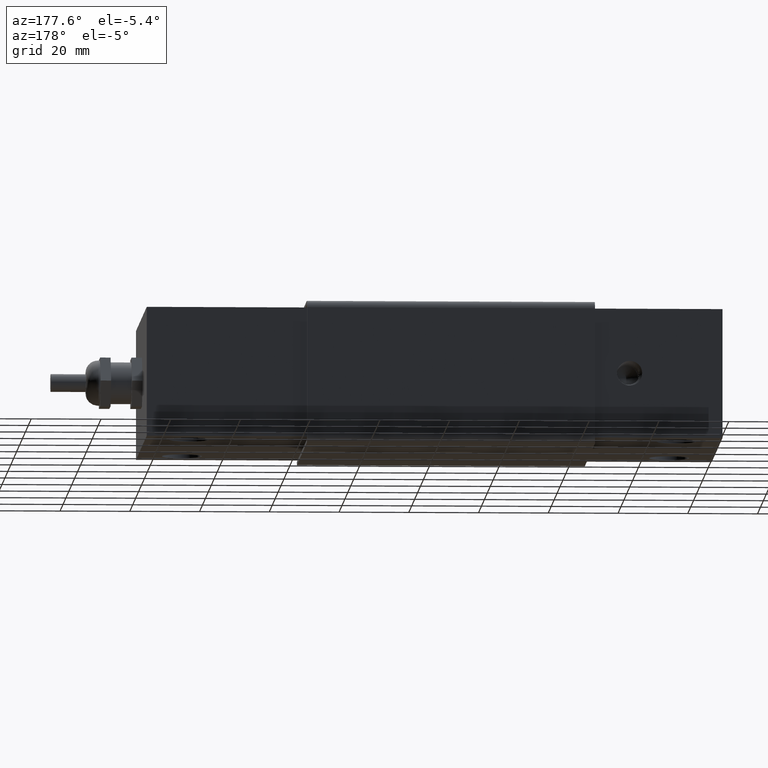
[diagram: clean part render]
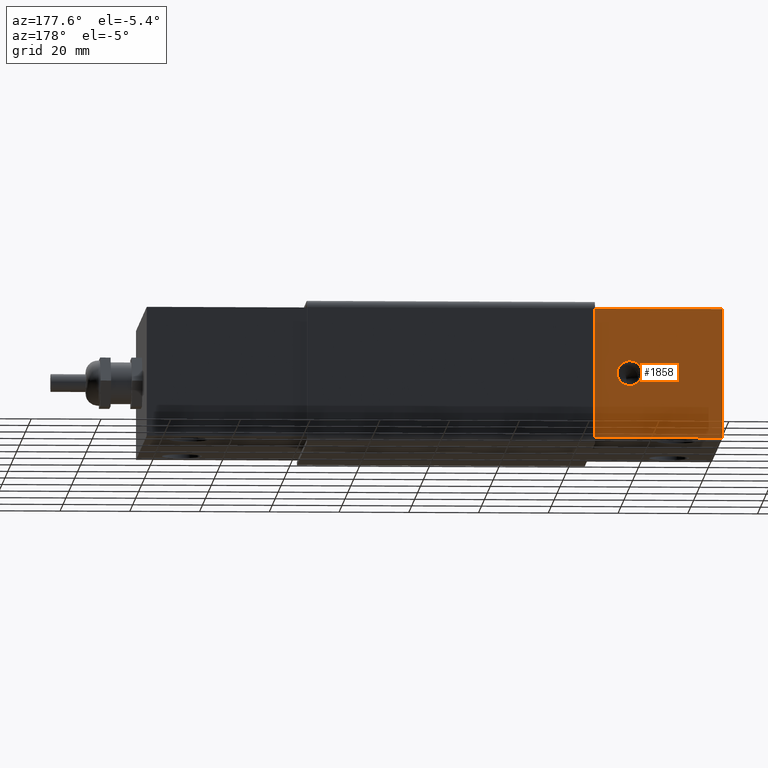
[diagram: same view with one face highlighted and labeled with its STEP entity id]
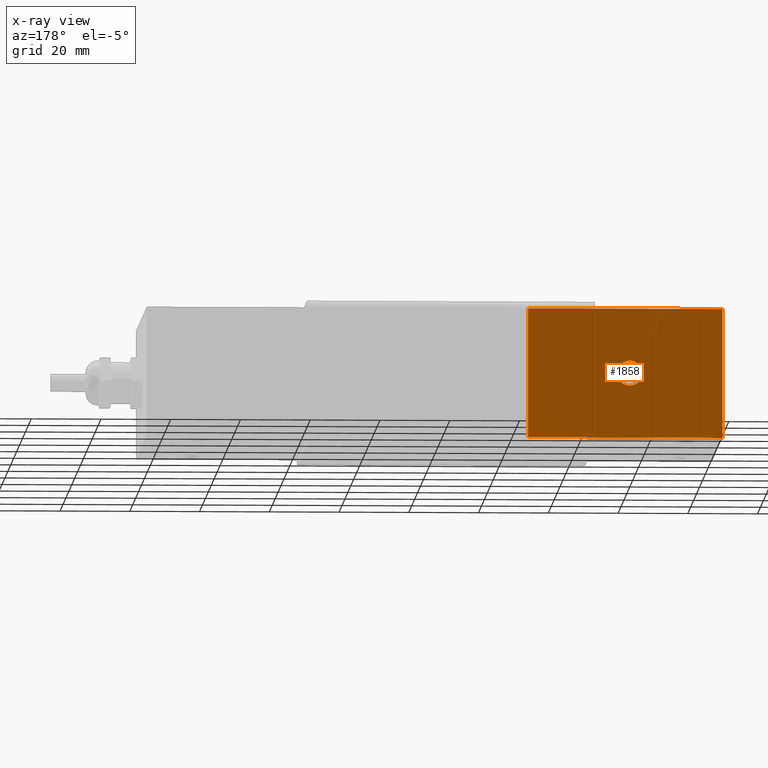
[diagram: x-ray of the same camera — body ghosted, the highlighted face saturated]
A machine part, auxiliary view. The second image highlights one B-rep face of the part: STEP entity #1858.
The next image is the same camera in x-ray: the body ghosted, the highlighted face saturated — about 0% of this face is hidden behind the body in this view.
In plain terms, the highlighted planar face has unit normal (0, 1, 0).
Its self-contained STEP definition (entity closure, byte-faithful):
#60=B_SPLINE_CURVE_WITH_KNOTS('',3,(#3767,#3768,#3769,#3770,#3771,#3772,
#3773,#3774,#3775,#3776,#3777,#3778,#3779,#3780,#3781,#3782,#3783,#3784,
#3785,#3786,#3787,#3788,#3789,#3790,#3791,#3792,#3793,#3794,#3795,#3796,
#3797,#3798,#3799,#3800,#3801,#3802,#3803,#3804,#3805,#3806,#3807,#3808,
#3809),.UNSPECIFIED.,.F.,.F.,(4,3,3,3,3,3,3,3,3,3,3,3,3,3,4),(0.,0.0707120839448921,
0.124668405679322,0.147984307307588,0.224369850239952,0.264820561062953,
0.289583147449735,0.348437743618254,0.406127728350922,0.432645910408985,
0.489508356296855,0.520531958636103,0.551406651569853,0.634424061736881,
0.643346502893822),.UNSPECIFIED.);
#63=B_SPLINE_CURVE_WITH_KNOTS('',3,(#4109,#4110,#4111,#4112,#4113,#4114,
#4115,#4116,#4117,#4118,#4119,#4120,#4121,#4122,#4123,#4124,#4125,#4126,
#4127,#4128,#4129,#4130,#4131,#4132,#4133,#4134,#4135,#4136,#4137,#4138,
#4139,#4140,#4141,#4142,#4143,#4144,#4145,#4146,#4147,#4148,#4149,#4150,
#4151,#4152,#4153,#4154),.UNSPECIFIED.,.F.,.F.,(4,3,3,3,3,3,3,3,3,3,3,3,
3,3,3,4),(0.,0.0820068844099959,0.124429764073611,0.1494568842909,0.176337001696729,
0.255964286815447,0.290242408834759,0.314541043317484,0.378943560879093,
0.426214093051343,0.454191321553513,0.503631586309466,0.535998992577674,
0.562459409477916,0.634833439690764,0.645905235844716),.UNSPECIFIED.);
#79=FACE_BOUND('',#353,.T.);
#125=PLANE('',#2038);
#234=FACE_OUTER_BOUND('',#352,.T.);
#352=EDGE_LOOP('',(#1550,#1551,#1552,#1553));
#353=EDGE_LOOP('',(#1554,#1555,#1556,#1557));
#475=LINE('',#4195,#631);
#502=LINE('',#4288,#658);
#503=LINE('',#4290,#659);
#504=LINE('',#4291,#660);
#631=VECTOR('',#2358,0.393700787401575);
#658=VECTOR('',#2451,0.393700787401575);
#659=VECTOR('',#2452,0.393700787401575);
#660=VECTOR('',#2453,0.393700787401575);
#722=CIRCLE('',#1955,0.12925);
#725=CIRCLE('',#1968,0.15625);
#834=VERTEX_POINT('',#3156);
#835=VERTEX_POINT('',#3170);
#849=VERTEX_POINT('',#3374);
#850=VERTEX_POINT('',#3380);
#873=VERTEX_POINT('',#4189);
#875=VERTEX_POINT('',#4193);
#908=VERTEX_POINT('',#4287);
#909=VERTEX_POINT('',#4289);
#1027=EDGE_CURVE('',#835,#834,#722,.T.);
#1054=EDGE_CURVE('',#850,#849,#725,.T.);
#1073=EDGE_CURVE('',#834,#850,#60,.T.);
#1076=EDGE_CURVE('',#849,#835,#63,.T.);
#1094=EDGE_CURVE('',#873,#875,#475,.T.);
#1139=EDGE_CURVE('',#875,#908,#502,.T.);
#1140=EDGE_CURVE('',#909,#908,#503,.T.);
#1141=EDGE_CURVE('',#909,#873,#504,.T.);
#1550=ORIENTED_EDGE('',*,*,#1094,.T.);
#1551=ORIENTED_EDGE('',*,*,#1139,.T.);
#1552=ORIENTED_EDGE('',*,*,#1140,.F.);
#1553=ORIENTED_EDGE('',*,*,#1141,.T.);
#1554=ORIENTED_EDGE('',*,*,#1076,.T.);
#1555=ORIENTED_EDGE('',*,*,#1027,.T.);
#1556=ORIENTED_EDGE('',*,*,#1073,.T.);
#1557=ORIENTED_EDGE('',*,*,#1054,.T.);
#1858=ADVANCED_FACE('',(#234,#79),#125,.T.);
#1955=AXIS2_PLACEMENT_3D('',#3171,#2238,#2239);
#1968=AXIS2_PLACEMENT_3D('',#3381,#2271,#2272);
#2038=AXIS2_PLACEMENT_3D('',#4286,#2449,#2450);
#2238=DIRECTION('center_axis',(0.,-1.,0.));
#2239=DIRECTION('ref_axis',(0.,0.,1.));
#2271=DIRECTION('center_axis',(0.,-1.,0.));
#2272=DIRECTION('ref_axis',(-4.02827377753758E-14,0.,1.));
#2358=DIRECTION('',(0.,0.,-1.));
#2449=DIRECTION('center_axis',(0.,1.,0.));
#2450=DIRECTION('ref_axis',(0.,0.,1.));
#2451=DIRECTION('',(-1.,0.,0.));
#2452=DIRECTION('',(0.,0.,-1.));
#2453=DIRECTION('',(1.,0.,0.));
#3156=CARTESIAN_POINT('',(-2.10648667066554,1.45,0.101103404052655));
#3170=CARTESIAN_POINT('',(-2.10648667066554,1.45,-0.101103404052656));
#3171=CARTESIAN_POINT('Origin',(-2.18700787401575,1.45,-2.84620465855858E-16));
#3374=CARTESIAN_POINT('',(-2.32557627991204,1.45,-0.0722001342613714));
#3380=CARTESIAN_POINT('',(-2.32557627991204,1.45,0.0722001342613689));
#3381=CARTESIAN_POINT('Origin',(-2.18700787401575,1.45,-2.84620465855858E-16));
#3767=CARTESIAN_POINT('Ctrl Pts',(-2.10648667066554,1.45,0.101103404052655));
#3768=CARTESIAN_POINT('Ctrl Pts',(-2.11301494590797,1.45,0.107698578784985));
#3769=CARTESIAN_POINT('Ctrl Pts',(-2.12025876870757,1.45,0.113485344700341));
#3770=CARTESIAN_POINT('Ctrl Pts',(-2.12803729274443,1.45,0.118464112258491));
#3771=CARTESIAN_POINT('Ctrl Pts',(-2.13397263677811,1.45,0.12226312325098));
#3772=CARTESIAN_POINT('Ctrl Pts',(-2.14022062453668,1.45,0.125591356778278));
#3773=CARTESIAN_POINT('Ctrl Pts',(-2.14671593509902,1.45,0.128437256711579));
#3774=CARTESIAN_POINT('Ctrl Pts',(-2.14952272431757,1.45,0.129667042596824));
#3775=CARTESIAN_POINT('Ctrl Pts',(-2.15237388147639,1.45,0.13080548985356));
#3776=CARTESIAN_POINT('Ctrl Pts',(-2.15525329990296,1.45,0.131848105988779));
#3777=CARTESIAN_POINT('Ctrl Pts',(-2.16468660183353,1.45,0.135263834911832));
#3778=CARTESIAN_POINT('Ctrl Pts',(-2.17445115236204,1.45,0.137667978024716));
#3779=CARTESIAN_POINT('Ctrl Pts',(-2.18436132616438,1.45,0.139036749506775));
#3780=CARTESIAN_POINT('Ctrl Pts',(-2.18960935555966,1.45,0.13976159582295));
#3781=CARTESIAN_POINT('Ctrl Pts',(-2.19489882958666,1.45,0.140195402102571));
#3782=CARTESIAN_POINT('Ctrl Pts',(-2.20020464221001,1.45,0.140329273741059));
#3783=CARTESIAN_POINT('Ctrl Pts',(-2.20345268509393,1.45,0.140411225527452));
#3784=CARTESIAN_POINT('Ctrl Pts',(-2.20669800534986,1.45,0.140380383377479));
#3785=CARTESIAN_POINT('Ctrl Pts',(-2.20993122305375,1.45,0.1402362068936));
#3786=CARTESIAN_POINT('Ctrl Pts',(-2.2176157887657,1.45,0.139893534742833));
#3787=CARTESIAN_POINT('Ctrl Pts',(-2.22523771787495,1.45,0.138911888624038));
#3788=CARTESIAN_POINT('Ctrl Pts',(-2.23271986130467,1.45,0.137274669262001));
#3789=CARTESIAN_POINT('Ctrl Pts',(-2.24005394850139,1.45,0.135669847104536));
#3790=CARTESIAN_POINT('Ctrl Pts',(-2.24725417704794,1.45,0.133435240585586));
#3791=CARTESIAN_POINT('Ctrl Pts',(-2.25427386418948,1.45,0.130624845360199));
#3792=CARTESIAN_POINT('Ctrl Pts',(-2.25750058270003,1.45,0.129332999425635));
#3793=CARTESIAN_POINT('Ctrl Pts',(-2.26068123952409,1.45,0.127922316253681));
#3794=CARTESIAN_POINT('Ctrl Pts',(-2.26380786025781,1.45,0.12640084290331));
#3795=CARTESIAN_POINT('Ctrl Pts',(-2.27051221509986,1.45,0.123138375820694));
#3796=CARTESIAN_POINT('Ctrl Pts',(-2.27697367613331,1.45,0.119365233670315));
#3797=CARTESIAN_POINT('Ctrl Pts',(-2.28314873180296,1.45,0.115135882004282));
#3798=CARTESIAN_POINT('Ctrl Pts',(-2.28651778265061,1.45,0.112828388504995));
#3799=CARTESIAN_POINT('Ctrl Pts',(-2.28980154950109,1.45,0.110384851601258));
#3800=CARTESIAN_POINT('Ctrl Pts',(-2.29299246705603,1.45,0.107812544137648));
#3801=CARTESIAN_POINT('Ctrl Pts',(-2.29616806860638,1.45,0.105252583427681));
#3802=CARTESIAN_POINT('Ctrl Pts',(-2.29924557302582,1.45,0.102569781224277));
#3803=CARTESIAN_POINT('Ctrl Pts',(-2.30221281135733,1.45,0.0997774990950351));
#3804=CARTESIAN_POINT('Ctrl Pts',(-2.3101912693831,1.45,0.0922694720088151));
#3805=CARTESIAN_POINT('Ctrl Pts',(-2.31738730181442,1.45,0.0839628790443066));
#3806=CARTESIAN_POINT('Ctrl Pts',(-2.32365939266799,1.45,0.0749965029099352));
#3807=CARTESIAN_POINT('Ctrl Pts',(-2.32433349658739,1.45,0.0740328259741098));
#3808=CARTESIAN_POINT('Ctrl Pts',(-2.32499689805645,1.45,0.0730614880177511));
#3809=CARTESIAN_POINT('Ctrl Pts',(-2.32564939735948,1.45,0.0720826344028696));
#4109=CARTESIAN_POINT('Ctrl Pts',(-2.32557627991204,1.45,-0.0722001342613714));
#4110=CARTESIAN_POINT('Ctrl Pts',(-2.31969605071199,1.45,-0.0812137242160293));
#4111=CARTESIAN_POINT('Ctrl Pts',(-2.31284747059907,1.45,-0.0895132321142139));
#4112=CARTESIAN_POINT('Ctrl Pts',(-2.30520144718884,1.45,-0.097022789569485));
#4113=CARTESIAN_POINT('Ctrl Pts',(-2.30124609230161,1.45,-0.100907549422807));
#4114=CARTESIAN_POINT('Ctrl Pts',(-2.29707670105229,1.45,-0.104580294828278));
#4115=CARTESIAN_POINT('Ctrl Pts',(-2.29271425144562,1.45,-0.108025972872829));
#4116=CARTESIAN_POINT('Ctrl Pts',(-2.29014065079394,1.45,-0.110058729709113));
#4117=CARTESIAN_POINT('Ctrl Pts',(-2.28749983528339,1.45,-0.112012396357352));
#4118=CARTESIAN_POINT('Ctrl Pts',(-2.28479600552654,1.45,-0.113883294883707));
#4119=CARTESIAN_POINT('Ctrl Pts',(-2.28189198538046,1.45,-0.115892713930173));
#4120=CARTESIAN_POINT('Ctrl Pts',(-2.27892246048301,1.45,-0.11780156150014));
#4121=CARTESIAN_POINT('Ctrl Pts',(-2.27589765887666,1.45,-0.119604139828598));
#4122=CARTESIAN_POINT('Ctrl Pts',(-2.26693725381964,1.45,-0.124943938622699));
#4123=CARTESIAN_POINT('Ctrl Pts',(-2.25748047939457,1.45,-0.129363178629644));
#4124=CARTESIAN_POINT('Ctrl Pts',(-2.24767320255422,1.45,-0.132758427893164));
#4125=CARTESIAN_POINT('Ctrl Pts',(-2.24345134528872,1.45,-0.134220021973225));
#4126=CARTESIAN_POINT('Ctrl Pts',(-2.23916443805471,1.45,-0.135491221343852));
#4127=CARTESIAN_POINT('Ctrl Pts',(-2.23482420883125,1.45,-0.136560698605615));
#4128=CARTESIAN_POINT('Ctrl Pts',(-2.23174756293411,1.45,-0.137318815898521));
#4129=CARTESIAN_POINT('Ctrl Pts',(-2.2286451401898,1.45,-0.137974992148023));
#4130=CARTESIAN_POINT('Ctrl Pts',(-2.22553357865209,1.45,-0.138523482777286));
#4131=CARTESIAN_POINT('Ctrl Pts',(-2.21728651453337,1.45,-0.139977234320756));
#4132=CARTESIAN_POINT('Ctrl Pts',(-2.20895183893899,1.45,-0.140682545550015));
#4133=CARTESIAN_POINT('Ctrl Pts',(-2.20060884518309,1.45,-0.140574729300722));
#4134=CARTESIAN_POINT('Ctrl Pts',(-2.19448520639251,1.45,-0.140495593706744));
#4135=CARTESIAN_POINT('Ctrl Pts',(-2.18835698784173,1.45,-0.139977675343936));
#4136=CARTESIAN_POINT('Ctrl Pts',(-2.18226491352856,1.45,-0.139037324404015));
#4137=CARTESIAN_POINT('Ctrl Pts',(-2.17865929820587,1.45,-0.138480774437059));
#4138=CARTESIAN_POINT('Ctrl Pts',(-2.17506527273696,1.45,-0.137775488342513));
#4139=CARTESIAN_POINT('Ctrl Pts',(-2.17150876598166,1.45,-0.136929084957919));
#4140=CARTESIAN_POINT('Ctrl Pts',(-2.16522384624508,1.45,-0.135433353977222));
#4141=CARTESIAN_POINT('Ctrl Pts',(-2.15904307743672,1.45,-0.133495884004656));
#4142=CARTESIAN_POINT('Ctrl Pts',(-2.15301385555564,1.45,-0.131139399815149));
#4143=CARTESIAN_POINT('Ctrl Pts',(-2.14906666241116,1.45,-0.129596663717296));
#4144=CARTESIAN_POINT('Ctrl Pts',(-2.14518450377399,1.45,-0.127874161996991));
#4145=CARTESIAN_POINT('Ctrl Pts',(-2.14138217937627,1.45,-0.125976689073547));
#4146=CARTESIAN_POINT('Ctrl Pts',(-2.13827377186533,1.45,-0.12442550130783));
#4147=CARTESIAN_POINT('Ctrl Pts',(-2.13522012628595,1.45,-0.122757712866352));
#4148=CARTESIAN_POINT('Ctrl Pts',(-2.13223979549831,1.45,-0.120982632745778));
#4149=CARTESIAN_POINT('Ctrl Pts',(-2.12408805128042,1.45,-0.116127467282551));
#4150=CARTESIAN_POINT('Ctrl Pts',(-2.11645866902859,1.45,-0.110460574059489));
#4151=CARTESIAN_POINT('Ctrl Pts',(-2.10952452330193,1.45,-0.104039134664844));
#4152=CARTESIAN_POINT('Ctrl Pts',(-2.10846373605875,1.45,-0.10305678135685));
#4153=CARTESIAN_POINT('Ctrl Pts',(-2.10741930721451,1.45,-0.102056722491662));
#4154=CARTESIAN_POINT('Ctrl Pts',(-2.10639195785273,1.45,-0.101039117347807));
#4189=CARTESIAN_POINT('',(-1.05520334864629,1.45,0.73));
#4193=CARTESIAN_POINT('',(-1.05520334864629,1.45,-0.729999999999999));
#4195=CARTESIAN_POINT('',(-1.05520334864629,1.45,0.));
#4286=CARTESIAN_POINT('Origin',(0.,1.45,-0.73));
#4287=CARTESIAN_POINT('',(-3.25,1.45,-0.73));
#4288=CARTESIAN_POINT('',(0.,1.45,-0.73));
#4289=CARTESIAN_POINT('',(-3.25,1.45,0.73));
#4290=CARTESIAN_POINT('',(-3.25,1.45,0.73));
#4291=CARTESIAN_POINT('',(0.,1.45,0.73));